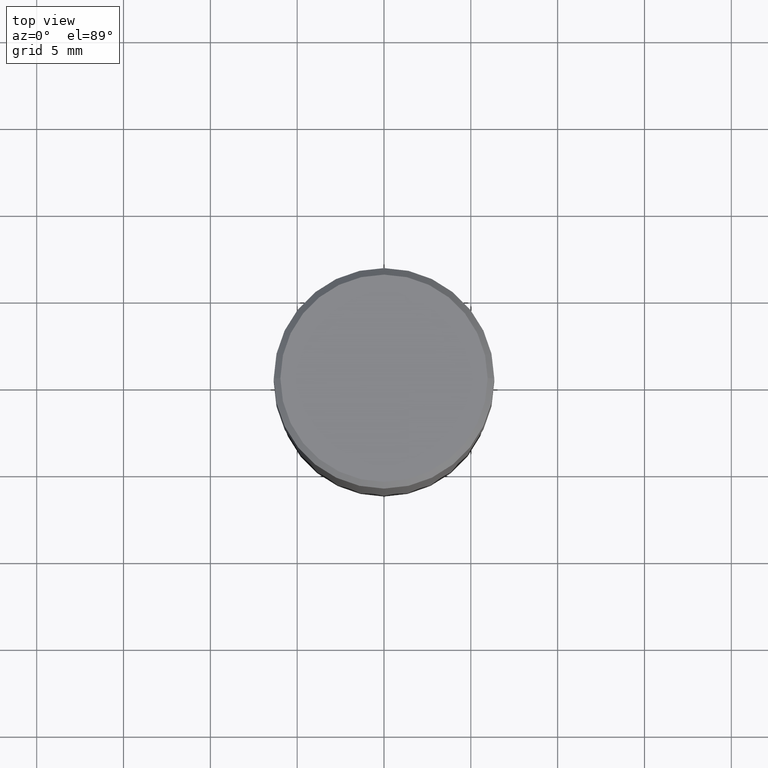
[diagram: clean part render]
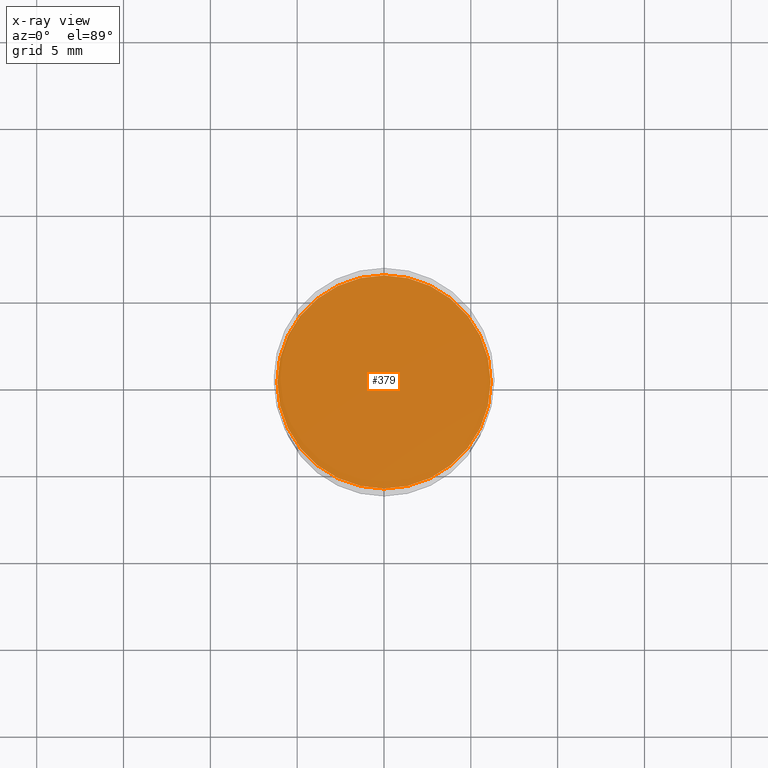
[diagram: x-ray — body ghosted, one internal face saturated and labeled with its STEP entity id]
A machine part, top view, then the same camera in x-ray: the body is ghosted and one INTERNAL B-rep face — a face not visible from any outside direction — is saturated and labeled: STEP entity #379.
In plain terms, the highlighted planar face has unit normal (-0, 0, 1).
Its self-contained STEP definition (entity closure, byte-faithful):
#5 = CARTESIAN_POINT ( 'NONE',  ( 0.2417000000000000259, -3.433522748618344170E-15, -0.5000000000000001110 ) ) ;
#39 = EDGE_CURVE ( 'NONE', #310, #407, #149, .T. ) ;
#51 = CARTESIAN_POINT ( 'NONE',  ( 1.222734403092568719E-29, -1.745740669421573186E-15, -0.5000000000000001110 ) ) ;
#59 = DIRECTION ( 'NONE',  ( 1.000000000000000000, -6.982962677686265922E-15, 4.876176775795935793E-29 ) ) ;
#89 = DIRECTION ( 'NONE',  ( 1.000000000000000000, -6.982962677686266711E-15, 0.000000000000000000 ) ) ;
#102 = CARTESIAN_POINT ( 'NONE',  ( 1.222734403092568719E-29, -1.745740669421573186E-15, -0.5000000000000001110 ) ) ;
#111 = AXIS2_PLACEMENT_3D ( 'NONE', #363, #393, #89 ) ;
#140 = EDGE_LOOP ( 'NONE', ( #159, #198 ) ) ;
#149 = CIRCLE ( 'NONE', #111, 0.2417000000000000259 ) ;
#159 = ORIENTED_EDGE ( 'NONE', *, *, #174, .F. ) ;
#174 = EDGE_CURVE ( 'NONE', #407, #310, #262, .T. ) ;
#196 = DIRECTION ( 'NONE',  ( 1.000000000000000000, -6.982962677686266711E-15, 0.000000000000000000 ) ) ;
#198 = ORIENTED_EDGE ( 'NONE', *, *, #39, .F. ) ;
#248 = DIRECTION ( 'NONE',  ( -2.438088387897960049E-29, 3.491481338843145188E-15, 1.000000000000000000 ) ) ;
#249 = AXIS2_PLACEMENT_3D ( 'NONE', #102, #248, #59 ) ;
#262 = CIRCLE ( 'NONE', #286, 0.2417000000000000259 ) ;
#283 = FACE_OUTER_BOUND ( 'NONE', #140, .T. ) ;
#286 = AXIS2_PLACEMENT_3D ( 'NONE', #51, #296, #196 ) ;
#296 = DIRECTION ( 'NONE',  ( -2.445468806185136597E-29, 3.491481338843145583E-15, 1.000000000000000000 ) ) ;
#310 = VERTEX_POINT ( 'NONE', #350 ) ;
#350 = CARTESIAN_POINT ( 'NONE',  ( -0.2417000000000000259, -2.570964991530020892E-17, -0.5000000000000001110 ) ) ;
#363 = CARTESIAN_POINT ( 'NONE',  ( 1.222734403092568719E-29, -1.745740669421573186E-15, -0.5000000000000001110 ) ) ;
#379 = ADVANCED_FACE ( 'NONE', ( #283 ), #415, .F. ) ;
#393 = DIRECTION ( 'NONE',  ( -2.445468806185136597E-29, 3.491481338843145583E-15, 1.000000000000000000 ) ) ;
#407 = VERTEX_POINT ( 'NONE', #5 ) ;
#415 = PLANE ( 'NONE',  #249 ) ;